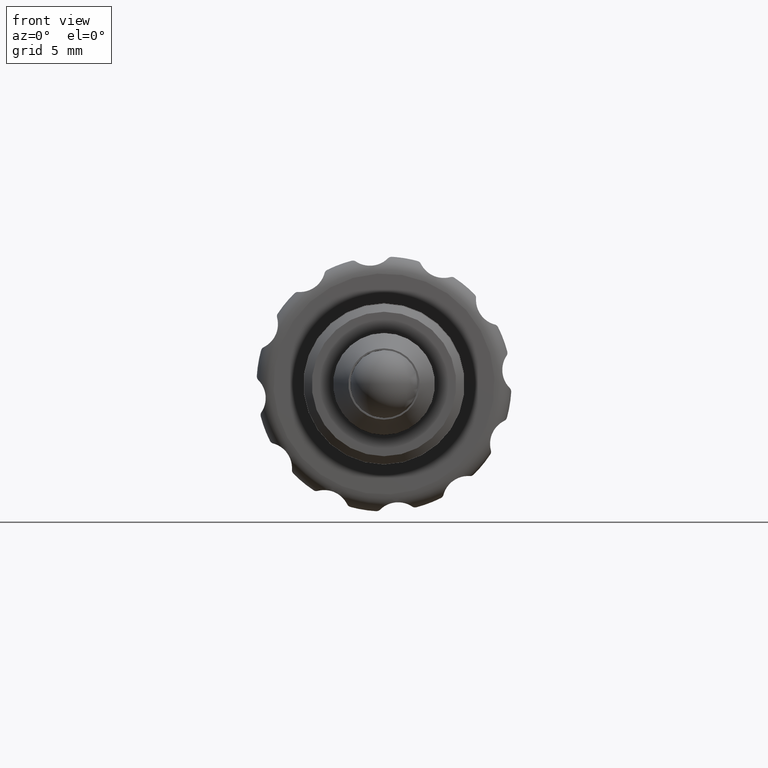
[diagram: clean part render]
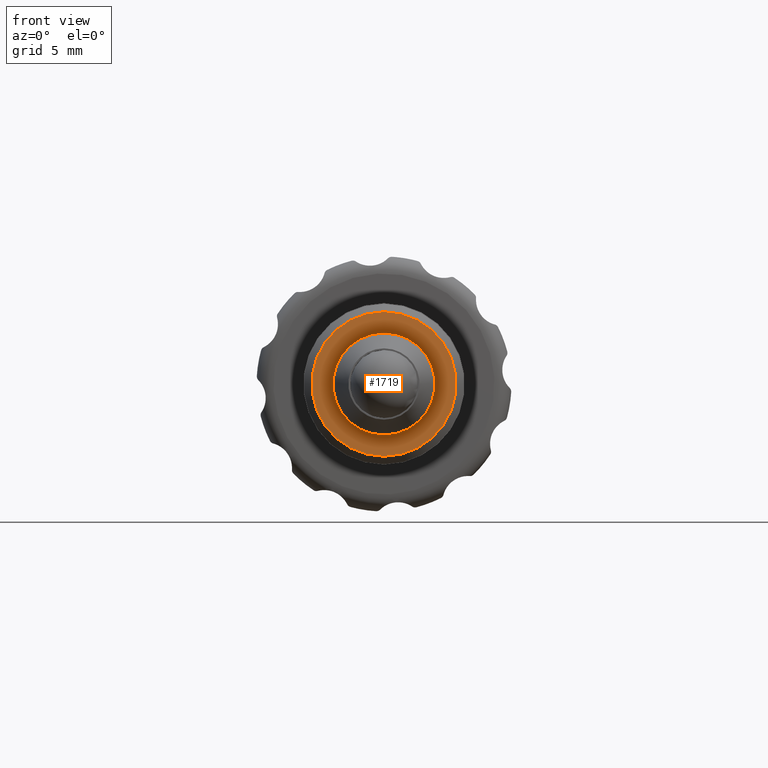
[diagram: same view with one face highlighted and labeled with its STEP entity id]
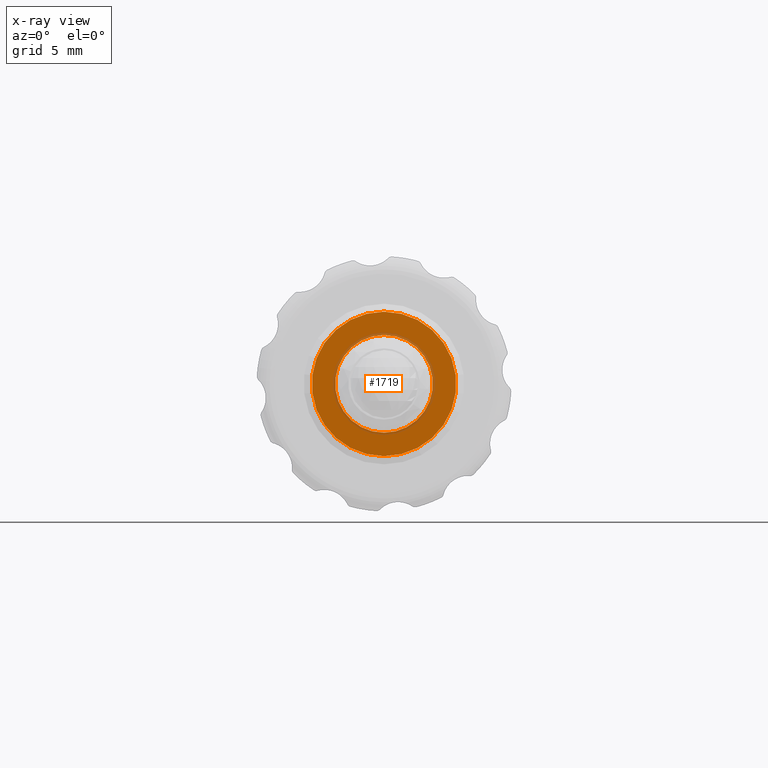
[diagram: x-ray of the same camera — body ghosted, the highlighted face saturated]
A machine part, front view. The second image highlights one B-rep face of the part: STEP entity #1719.
The next image is the same camera in x-ray: the body ghosted, the highlighted face saturated — about 7% of this face is hidden behind the body in this view.
In plain terms, the highlighted planar face has unit normal (-0, -1, 0).
Its self-contained STEP definition (entity closure, byte-faithful):
#36 = AXIS2_PLACEMENT_3D ( 'NONE', #348, #2391, #1190 ) ;
#147 = ORIENTED_EDGE ( 'NONE', *, *, #447, .F. ) ;
#168 = FACE_BOUND ( 'NONE', #454, .T. ) ;
#348 = CARTESIAN_POINT ( 'NONE',  ( -7.528947353927379399E-15, -11.99999999999998224, -3.122502256758252770E-14 ) ) ;
#447 = EDGE_CURVE ( 'NONE', #2129, #2129, #842, .T. ) ;
#454 = EDGE_LOOP ( 'NONE', ( #147 ) ) ;
#487 = CARTESIAN_POINT ( 'NONE',  ( -7.209758234350358997E-15, -11.99999999999998224, 2.874999999999975131 ) ) ;
#579 = CARTESIAN_POINT ( 'NONE',  ( -7.528947353927379399E-15, -11.99999999999998224, -3.122502256758252770E-14 ) ) ;
#654 = ORIENTED_EDGE ( 'NONE', *, *, #2559, .T. ) ;
#789 = DIRECTION ( 'NONE',  ( 1.110223024615717450E-16, 0.000000000000000000, 1.000000000000000000 ) ) ;
#842 = CIRCLE ( 'NONE', #1437, 2.875000000000006661 ) ;
#988 = FACE_OUTER_BOUND ( 'NONE', #2159, .T. ) ;
#1039 = DIRECTION ( 'NONE',  ( 1.110223024615720162E-16, 4.081702296416014025E-16, 1.000000000000000000 ) ) ;
#1190 = DIRECTION ( 'NONE',  ( 1.110223024615719545E-16, 2.572937036057972714E-16, 1.000000000000000000 ) ) ;
#1280 = CARTESIAN_POINT ( 'NONE',  ( -7.528947353927379399E-15, -11.99999999999998224, -3.122502256758252770E-14 ) ) ;
#1380 = CARTESIAN_POINT ( 'NONE',  ( -7.057102568465697649E-15, -11.99999999999998046, 4.249999999999971578 ) ) ;
#1396 = VERTEX_POINT ( 'NONE', #1380 ) ;
#1437 = AXIS2_PLACEMENT_3D ( 'NONE', #579, #1796, #789 ) ;
#1451 = CIRCLE ( 'NONE', #2127, 4.250000000000002665 ) ;
#1719 = ADVANCED_FACE ( 'NONE', ( #988, #168 ), #2593, .T. ) ;
#1796 = DIRECTION ( 'NONE',  ( -2.242596216879639770E-16, -1.000000000000000000, -2.572937036057979123E-16 ) ) ;
#2127 = AXIS2_PLACEMENT_3D ( 'NONE', #1280, #2520, #1039 ) ;
#2129 = VERTEX_POINT ( 'NONE', #487 ) ;
#2159 = EDGE_LOOP ( 'NONE', ( #654 ) ) ;
#2391 = DIRECTION ( 'NONE',  ( -2.242596216879638784E-16, -1.000000000000000000, 2.572937036057973207E-16 ) ) ;
#2520 = DIRECTION ( 'NONE',  ( -2.242596216879639770E-16, -1.000000000000000000, -2.572937036057979123E-16 ) ) ;
#2559 = EDGE_CURVE ( 'NONE', #1396, #1396, #1451, .T. ) ;
#2593 = PLANE ( 'NONE',  #36 ) ;